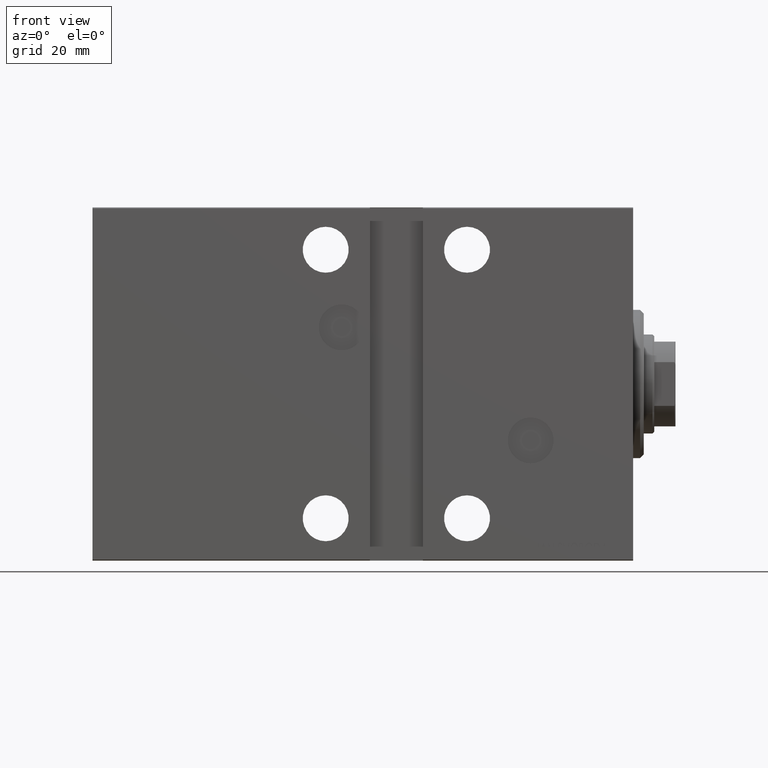
[diagram: clean part render]
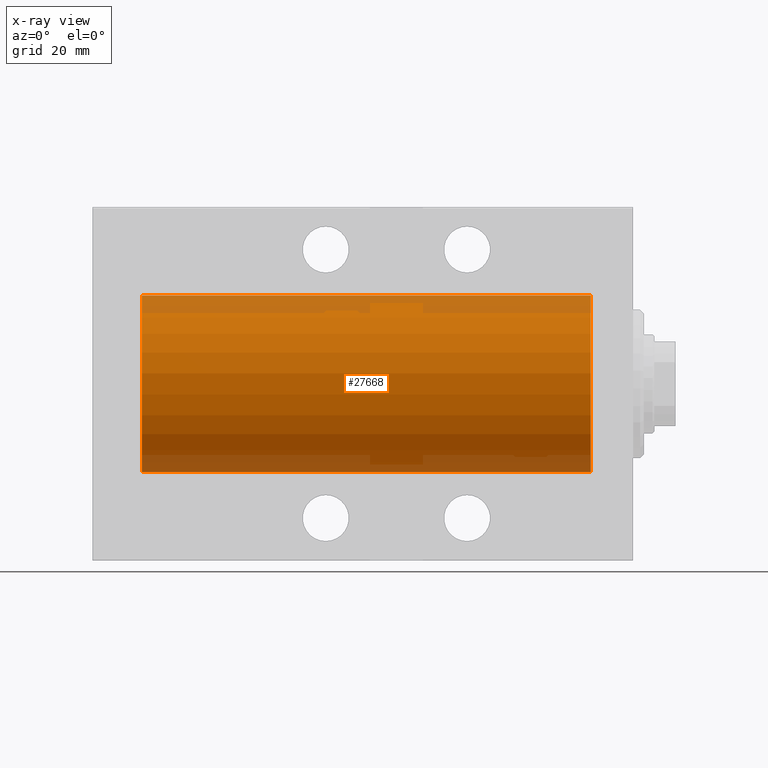
[diagram: x-ray — body ghosted, one internal face saturated and labeled with its STEP entity id]
A machine part, front view, then the same camera in x-ray: the body is ghosted and one INTERNAL B-rep face — a face not visible from any outside direction — is saturated and labeled: STEP entity #27668.
In plain terms, the highlighted cylindrical surface (partial cylindrical patch) has radius 25 mm, axis along (1, 0, -0).
Its self-contained STEP definition (entity closure, byte-faithful):
#216 = CARTESIAN_POINT ( 'NONE',  ( 139.0000000000000000, 3.061616997868383043E-15, -25.00000000000000000 ) ) ;
#321 = CARTESIAN_POINT ( 'NONE',  ( 139.0000000000000000, 3.061616997868383043E-15, -25.00000000000000000 ) ) ;
#1039 = FACE_OUTER_BOUND ( 'NONE', #18334, .T. ) ;
#2355 = DIRECTION ( 'NONE',  ( -1.000000000000000000, 0.000000000000000000, 0.000000000000000000 ) ) ;
#2491 = EDGE_CURVE ( 'NONE', #22087, #32969, #28023, .T. ) ;
#3484 = AXIS2_PLACEMENT_3D ( 'NONE', #40886, #5438, #18947 ) ;
#4721 = EDGE_CURVE ( 'NONE', #22087, #5307, #14899, .T. ) ;
#5307 = VERTEX_POINT ( 'NONE', #13889 ) ;
#5438 = DIRECTION ( 'NONE',  ( -1.000000000000000000, -0.000000000000000000, -0.000000000000000000 ) ) ;
#6556 = CARTESIAN_POINT ( 'NONE',  ( 12.00000000000001066, 3.061616997868383043E-15, -25.00000000000000000 ) ) ;
#7837 = DIRECTION ( 'NONE',  ( -1.000000000000000000, -0.000000000000000000, -0.000000000000000000 ) ) ;
#9006 = EDGE_CURVE ( 'NONE', #5307, #22614, #26449, .T. ) ;
#11739 = AXIS2_PLACEMENT_3D ( 'NONE', #31289, #11799, #35020 ) ;
#11799 = DIRECTION ( 'NONE',  ( -1.000000000000000000, 0.000000000000000000, 0.000000000000000000 ) ) ;
#13889 = CARTESIAN_POINT ( 'NONE',  ( 12.00000000000001066, 0.000000000000000000, 25.00000000000000000 ) ) ;
#14076 = ORIENTED_EDGE ( 'NONE', *, *, #9006, .T. ) ;
#14899 = LINE ( 'NONE', #25281, #30270 ) ;
#17367 = LINE ( 'NONE', #321, #38717 ) ;
#18334 = EDGE_LOOP ( 'NONE', ( #19020, #32317, #40019, #14076 ) ) ;
#18947 = DIRECTION ( 'NONE',  ( 0.000000000000000000, 0.000000000000000000, 1.000000000000000000 ) ) ;
#19020 = ORIENTED_EDGE ( 'NONE', *, *, #23719, .F. ) ;
#22087 = VERTEX_POINT ( 'NONE', #34757 ) ;
#22614 = VERTEX_POINT ( 'NONE', #6556 ) ;
#23719 = EDGE_CURVE ( 'NONE', #32969, #22614, #17367, .T. ) ;
#25281 = CARTESIAN_POINT ( 'NONE',  ( 139.0000000000000000, 0.000000000000000000, 25.00000000000000000 ) ) ;
#26449 = CIRCLE ( 'NONE', #32091, 25.00000000000000000 ) ;
#27668 = ADVANCED_FACE ( 'NONE', ( #1039 ), #28273, .F. ) ;
#28023 = CIRCLE ( 'NONE', #11739, 25.00000000000000000 ) ;
#28273 = CYLINDRICAL_SURFACE ( 'NONE', #3484, 25.00000000000000000 ) ;
#29370 = DIRECTION ( 'NONE',  ( 0.000000000000000000, 0.000000000000000000, 1.000000000000000000 ) ) ;
#30270 = VECTOR ( 'NONE', #38350, 1000.000000000000000 ) ;
#31289 = CARTESIAN_POINT ( 'NONE',  ( 139.0000000000000000, 0.000000000000000000, 0.000000000000000000 ) ) ;
#32091 = AXIS2_PLACEMENT_3D ( 'NONE', #42410, #2355, #29370 ) ;
#32317 = ORIENTED_EDGE ( 'NONE', *, *, #2491, .F. ) ;
#32969 = VERTEX_POINT ( 'NONE', #216 ) ;
#34757 = CARTESIAN_POINT ( 'NONE',  ( 139.0000000000000000, 0.000000000000000000, 25.00000000000000000 ) ) ;
#35020 = DIRECTION ( 'NONE',  ( 0.000000000000000000, 0.000000000000000000, 1.000000000000000000 ) ) ;
#38350 = DIRECTION ( 'NONE',  ( -1.000000000000000000, -0.000000000000000000, -0.000000000000000000 ) ) ;
#38717 = VECTOR ( 'NONE', #7837, 1000.000000000000000 ) ;
#40019 = ORIENTED_EDGE ( 'NONE', *, *, #4721, .T. ) ;
#40886 = CARTESIAN_POINT ( 'NONE',  ( 139.0000000000000000, 0.000000000000000000, 0.000000000000000000 ) ) ;
#42410 = CARTESIAN_POINT ( 'NONE',  ( 12.00000000000001066, 0.000000000000000000, 0.000000000000000000 ) ) ;